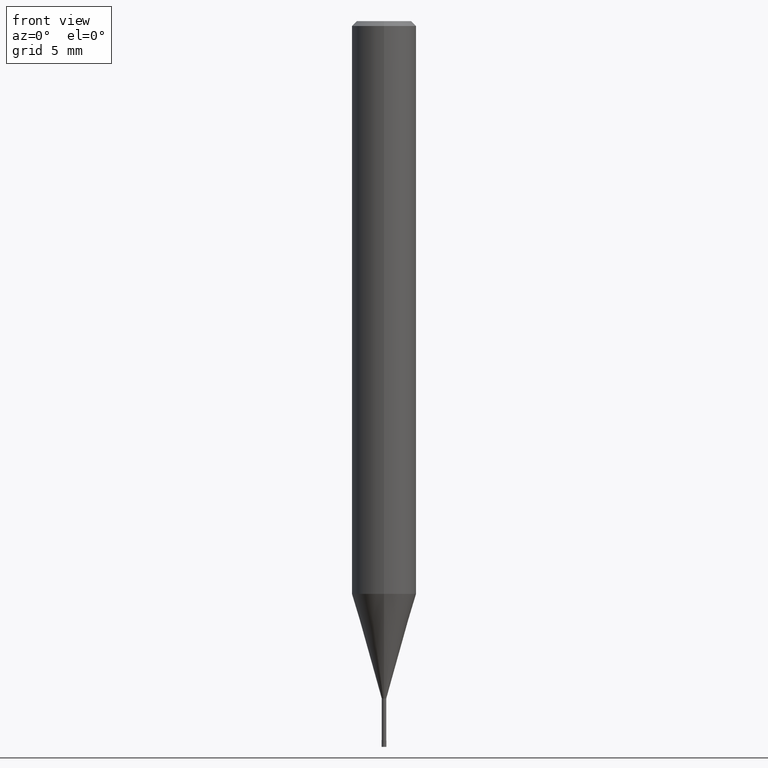
[diagram: clean part render]
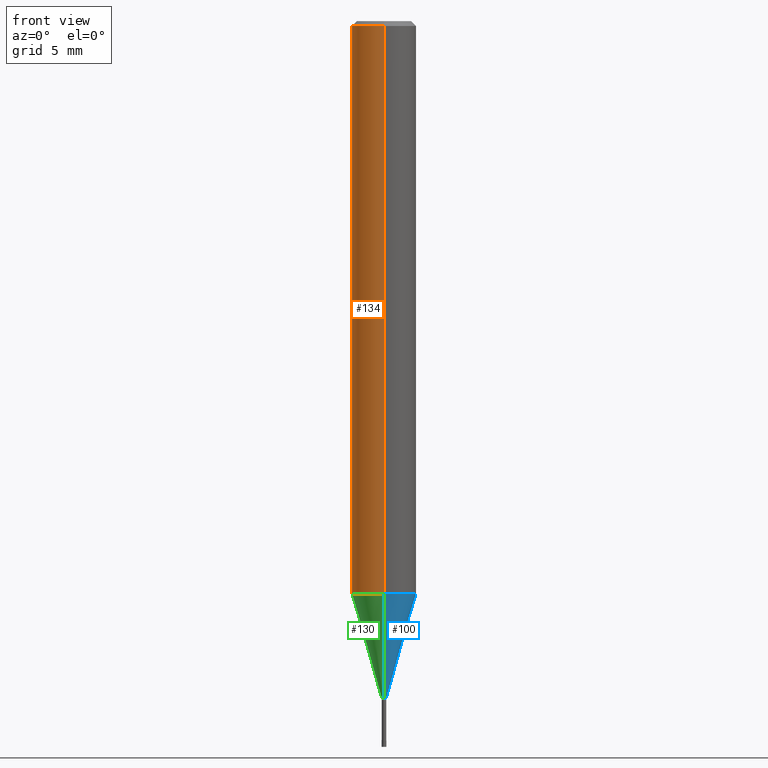
[diagram: same view with three faces highlighted in distinct colors, each labeled with its STEP entity id]
A machine part, front view with three faces highlighted in distinct colors.
Their STEP definitions:

[orange] entity #134 — the highlighted cylindrical surface (edge-blend (fillet) strip) has radius 2 mm, axis along (-0, -0, 1).
#112=VERTEX_POINT('',#254);
#114=VERTEX_POINT('',#256);
#116=EDGE_CURVE('',#168,#202,#258,.T.);
#118=EDGE_CURVE('',#112,#202,#260,.T.);
#120=EDGE_CURVE('',#114,#112,#262,.T.);
#134=ADVANCED_FACE('',(#278),#279,.T.);
#138=EDGE_CURVE('',#168,#114,#284,.T.);
#168=VERTEX_POINT('',#318);
#202=VERTEX_POINT('',#354);
#254=CARTESIAN_POINT('',(0.0,2.0,-0.299999999999997));
#256=CARTESIAN_POINT('',(2.44921270764475E-016,-2.0,-0.299999999999997));
#258=CIRCLE('',#404,2.0);
#260=LINE('',#407,#408);
#262=CIRCLE('',#411,2.0);
#278=FACE_OUTER_BOUND('',#431,.T.);
#279=CYLINDRICAL_SURFACE('',#432,2.0);
#284=LINE('',#438,#439);
#318=CARTESIAN_POINT('',(2.44921270764475E-016,-2.0,-35.513));
#354=CARTESIAN_POINT('',(0.0,2.0,-35.513));
#404=AXIS2_PLACEMENT_3D('',#582,#583,#584);
#407=CARTESIAN_POINT('',(-2.44921270764475E-016,2.0,-17.9065));
#408=VECTOR('',#585,1.0);
#411=AXIS2_PLACEMENT_3D('',#586,#587,#588);
#431=EDGE_LOOP('',(#613,#614,#615,#616));
#432=AXIS2_PLACEMENT_3D('',#617,#618,#619);
#438=CARTESIAN_POINT('',(2.44921270764475E-016,-2.0,-17.9065));
#439=VECTOR('',#626,1.0);
#582=CARTESIAN_POINT('',(0.0,0.0,-35.513));
#583=DIRECTION('',(0.0,0.0,-1.0));
#584=DIRECTION('',(0.0,1.0,0.0));
#585=DIRECTION('',(0.0,0.0,-1.0));
#586=CARTESIAN_POINT('',(0.0,0.0,-0.299999999999997));
#587=DIRECTION('',(0.0,0.0,-1.0));
#588=DIRECTION('',(0.0,1.0,0.0));
#613=ORIENTED_EDGE('',*,*,#118,.T.);
#614=ORIENTED_EDGE('',*,*,#116,.F.);
#615=ORIENTED_EDGE('',*,*,#138,.T.);
#616=ORIENTED_EDGE('',*,*,#120,.T.);
#617=CARTESIAN_POINT('',(0.0,0.0,-17.9065));
#618=DIRECTION('',(-0.0,-0.0,1.0));
#619=DIRECTION('',(0.0,1.0,0.0));
#626=DIRECTION('',(-0.0,-0.0,1.0));

[blue] entity #100 — the highlighted conical surface has half-angle 15.999 deg.
#96=VERTEX_POINT('',#234);
#100=ADVANCED_FACE('',(#239),#240,.T.);
#156=EDGE_CURVE('',#188,#166,#304,.T.);
#164=EDGE_CURVE('',#188,#184,#314,.T.);
#166=VERTEX_POINT('',#316);
#176=EDGE_CURVE('',#184,#96,#326,.T.);
#184=VERTEX_POINT('',#336);
#188=VERTEX_POINT('',#340);
#200=EDGE_CURVE('',#96,#166,#352,.T.);
#234=CARTESIAN_POINT('',(1.71383659217442E-017,-0.13995,-42.0));
#239=FACE_OUTER_BOUND('',#385,.T.);
#240=CONICAL_SURFACE('',#386,1.06995,0.27923596926092);
#304=CIRCLE('',#463,1.99995);
#314=LINE('',#474,#475);
#316=CARTESIAN_POINT('',(2.44915147732706E-016,-1.99995,-35.513));
#326=CIRCLE('',#491,0.13995);
#336=CARTESIAN_POINT('',(0.0,0.13995,-42.0));
#340=CARTESIAN_POINT('',(0.0,1.99995,-35.513));
#352=LINE('',#529,#530);
#385=EDGE_LOOP('',(#558,#559,#560,#561));
#386=AXIS2_PLACEMENT_3D('',#562,#563,#564);
#463=AXIS2_PLACEMENT_3D('',#644,#645,#646);
#474=CARTESIAN_POINT('',(-1.31026756827225E-016,1.06995,-38.7565));
#475=VECTOR('',#663,1.0);
#491=AXIS2_PLACEMENT_3D('',#673,#674,#675);
#529=CARTESIAN_POINT('',(1.31026756827225E-016,-1.06995,-38.7565));
#530=VECTOR('',#702,1.0);
#558=ORIENTED_EDGE('',*,*,#164,.F.);
#559=ORIENTED_EDGE('',*,*,#156,.T.);
#560=ORIENTED_EDGE('',*,*,#200,.F.);
#561=ORIENTED_EDGE('',*,*,#176,.F.);
#562=CARTESIAN_POINT('',(0.0,0.0,-38.7565));
#563=DIRECTION('',(-0.0,-0.0,1.0));
#564=DIRECTION('',(0.0,1.0,0.0));
#644=CARTESIAN_POINT('',(0.0,0.0,-35.513));
#645=DIRECTION('',(0.0,0.0,-1.0));
#646=DIRECTION('',(0.0,1.0,0.0));
#663=DIRECTION('',(3.37527585527933E-017,-0.275621292078393,-0.961266301995986));
#673=CARTESIAN_POINT('',(0.0,0.0,-42.0));
#674=DIRECTION('',(0.0,0.0,-1.0));
#675=DIRECTION('',(0.0,1.0,0.0));
#702=DIRECTION('',(3.37527585527934E-017,-0.275621292078393,0.961266301995986));

[green] entity #130 — the highlighted conical surface has half-angle 15.999 deg.
#94=EDGE_CURVE('',#166,#188,#232,.T.);
#96=VERTEX_POINT('',#234);
#130=ADVANCED_FACE('',(#273),#274,.T.);
#164=EDGE_CURVE('',#188,#184,#314,.T.);
#166=VERTEX_POINT('',#316);
#184=VERTEX_POINT('',#336);
#188=VERTEX_POINT('',#340);
#198=EDGE_CURVE('',#96,#184,#350,.T.);
#200=EDGE_CURVE('',#96,#166,#352,.T.);
#232=CIRCLE('',#378,1.99995);
#234=CARTESIAN_POINT('',(1.71383659217442E-017,-0.13995,-42.0));
#273=FACE_OUTER_BOUND('',#425,.T.);
#274=CONICAL_SURFACE('',#426,1.06995,0.27923596926092);
#314=LINE('',#474,#475);
#316=CARTESIAN_POINT('',(2.44915147732706E-016,-1.99995,-35.513));
#336=CARTESIAN_POINT('',(0.0,0.13995,-42.0));
#340=CARTESIAN_POINT('',(0.0,1.99995,-35.513));
#350=CIRCLE('',#526,0.13995);
#352=LINE('',#529,#530);
#378=AXIS2_PLACEMENT_3D('',#548,#549,#550);
#425=EDGE_LOOP('',(#602,#603,#604,#605));
#426=AXIS2_PLACEMENT_3D('',#606,#607,#608);
#474=CARTESIAN_POINT('',(-1.31026756827225E-016,1.06995,-38.7565));
#475=VECTOR('',#663,1.0);
#526=AXIS2_PLACEMENT_3D('',#699,#700,#701);
#529=CARTESIAN_POINT('',(1.31026756827225E-016,-1.06995,-38.7565));
#530=VECTOR('',#702,1.0);
#548=CARTESIAN_POINT('',(0.0,0.0,-35.513));
#549=DIRECTION('',(0.0,0.0,-1.0));
#550=DIRECTION('',(0.0,1.0,0.0));
#602=ORIENTED_EDGE('',*,*,#164,.T.);
#603=ORIENTED_EDGE('',*,*,#198,.F.);
#604=ORIENTED_EDGE('',*,*,#200,.T.);
#605=ORIENTED_EDGE('',*,*,#94,.T.);
#606=CARTESIAN_POINT('',(0.0,0.0,-38.7565));
#607=DIRECTION('',(-0.0,-0.0,1.0));
#608=DIRECTION('',(0.0,1.0,0.0));
#663=DIRECTION('',(3.37527585527933E-017,-0.275621292078393,-0.961266301995986));
#699=CARTESIAN_POINT('',(0.0,0.0,-42.0));
#700=DIRECTION('',(0.0,0.0,-1.0));
#701=DIRECTION('',(0.0,1.0,0.0));
#702=DIRECTION('',(3.37527585527934E-017,-0.275621292078393,0.961266301995986));